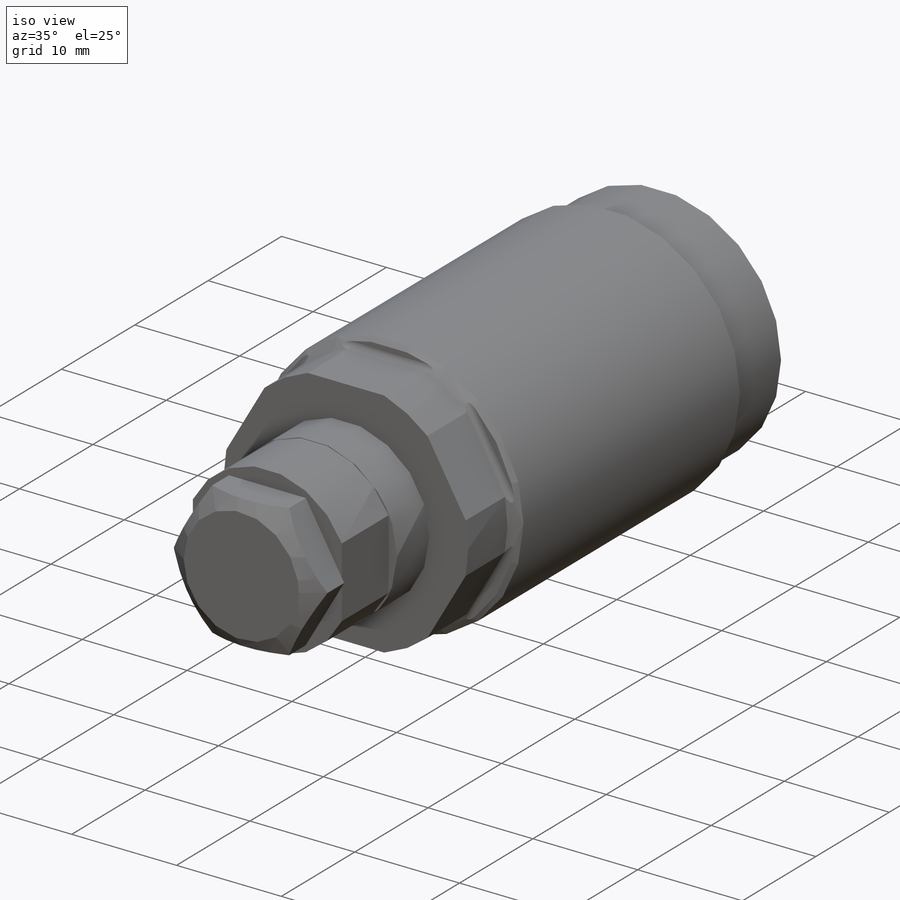
[diagram: iso view]
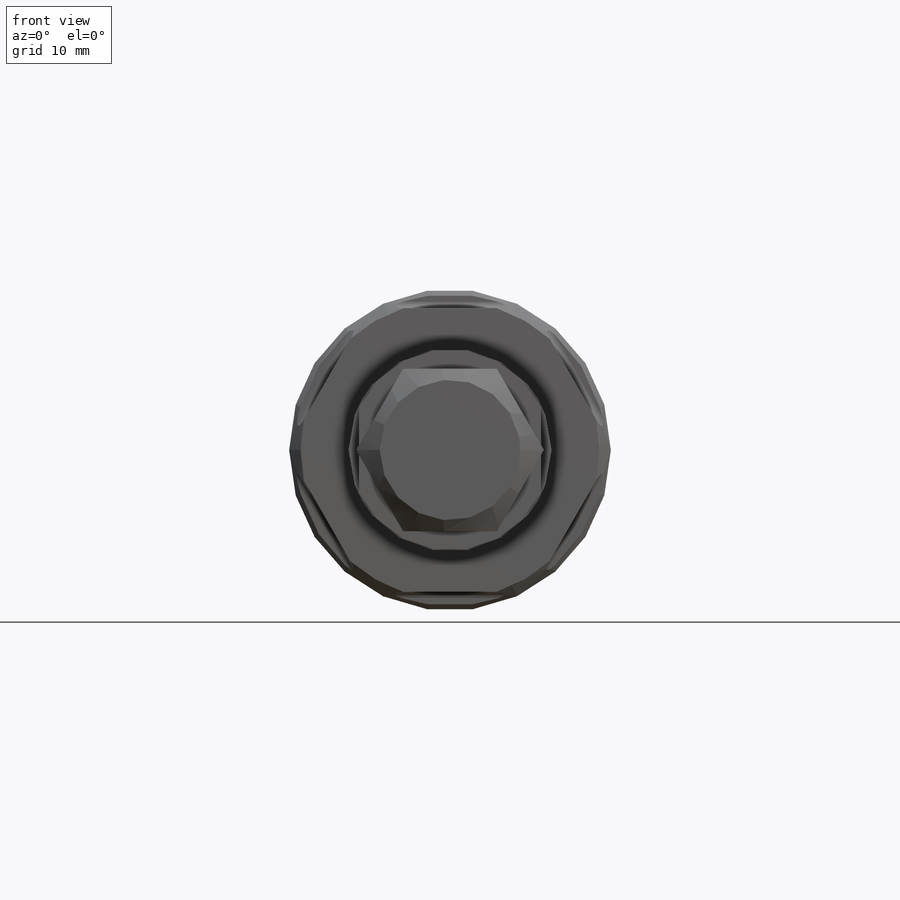
[diagram: front view]
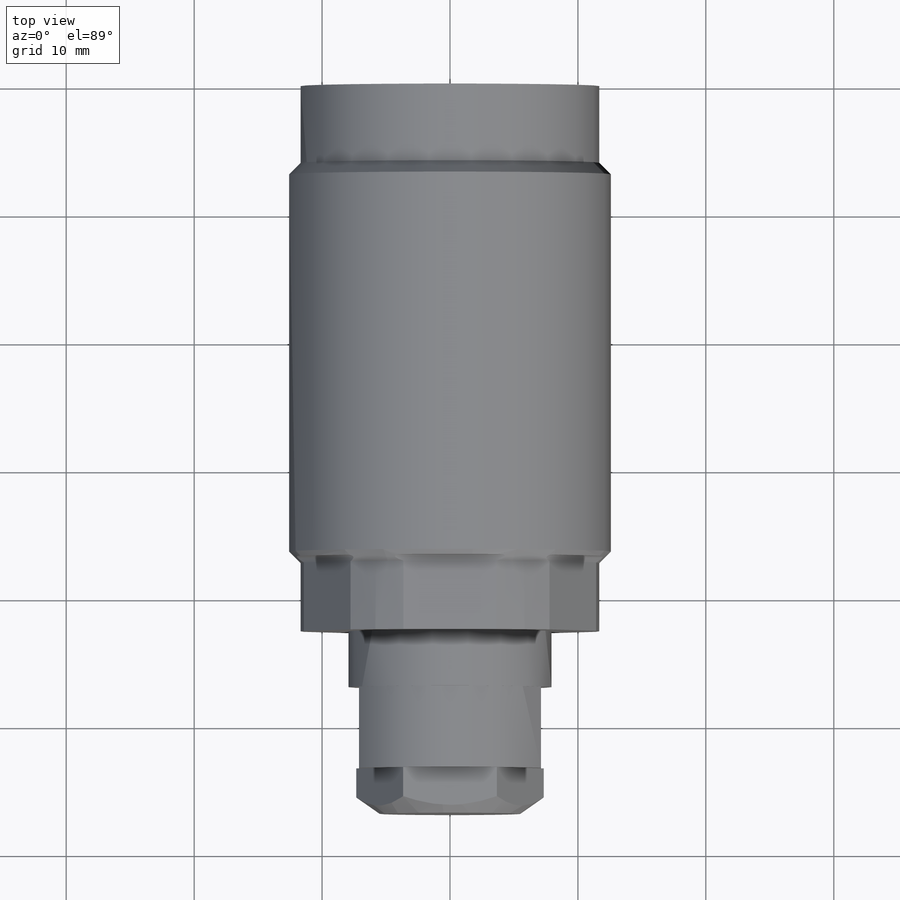
[diagram: top view]
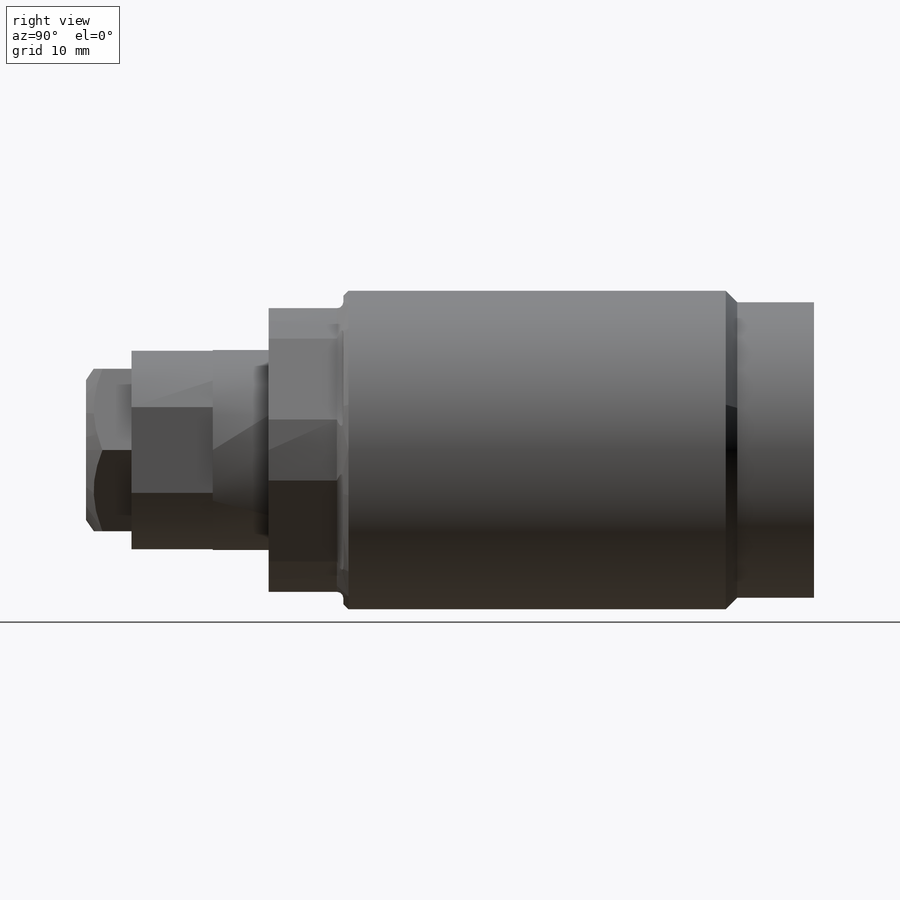
[diagram: right view]
SOLIDWORKS PART (.sldprt)
format: sldprt  version: not decoded by parser v0  size: 348,672 bytes
history: native  units: mm
features: sketch x10, plane x9, cut_revolve x5, extrude x2, cut_extrude x2, material x1, revolve x1, pattern_circular x1 (+13 scaffold rows collapsed)
feature tree (44):
  scaffold x13  (default folders/planes/origin — collapsed)
  material  "Alloy Steel"
  plane  "Plane1"
  sketch  "Sketch1"  dims[D1=25.146mm]
  extrude  "Extrude1"  Depth=42.6212mm
  plane  "Plane2"
  sketch  "Sketch2"  dims[D3=0.508mm D1=22.1742mm D2=5.842mm]
  cut_extrude  "Cut-Extrude1"  Depth=30.1752mm
  plane  "Plane12"
  sketch  "Sketch10"  dims[c1.D1=23.3426mm c1.D2=5.334mm c1.D3=~1.275196mm c2.D3=45.0deg]
  cut_revolve  "Cut-Revolve1"  Angle=360deg
  plane  "Plane13"
  sketch  "Sketch11"  dims[c1.D1=23.3426mm c1.D2=5.9944mm c1.D3=0.9017mm c2.D3=45.0deg]
  cut_revolve  "Cut-Revolve2"  Angle=360deg
  plane  "Plane14"
  sketch  "Sketch12"  dims[D1=10.7188mm D2=15.875mm]
  revolve  "Revolve1"  Angle=360deg
  plane  "Plane15"
  sketch  "S2D0011"  dims[D1=4.826mm D2=6.9088mm]
  cut_revolve  "Cut-Revolve3"  Angle=360deg
  plane  "Plane16"
  plane  "Plane17"
  sketch  "Sketch15"  dims[D2=7.9375mm D1=14.224mm]
  cut_extrude  "Cut-Extrude10"  Depth=6.35mm
  sketch  "Sketch16"  dims[c1.D1=12.7mm c1.D2=6.35mm c2.D2=120.0deg c2.D3=12.7mm c2.D4=6.35mm]
  extrude  "Extrude2"  Depth=3.556mm
  plane  "Plane18"
  sketch  "Sketch17"  dims[c1.D1=10.9982mm c1.D2=~1.833248mm c2.D2=35.0deg]
  cut_revolve  "Cut-Revolve4"  Angle=360deg
  pattern_circular  "CirPattern2"  Count=6 Angle=360deg
  sketch  "Sketch18"  dims[D1=6.35mm D2=15.7226mm]
  cut_revolve  "Cut-Revolve5"  Angle=360deg
decode coverage: 21 of 21 modeling features carry decoded parameters
note: ~ marks probable driven/reference dimensions
note: suppression state not decoded; provenance and decode notes live in map.json
